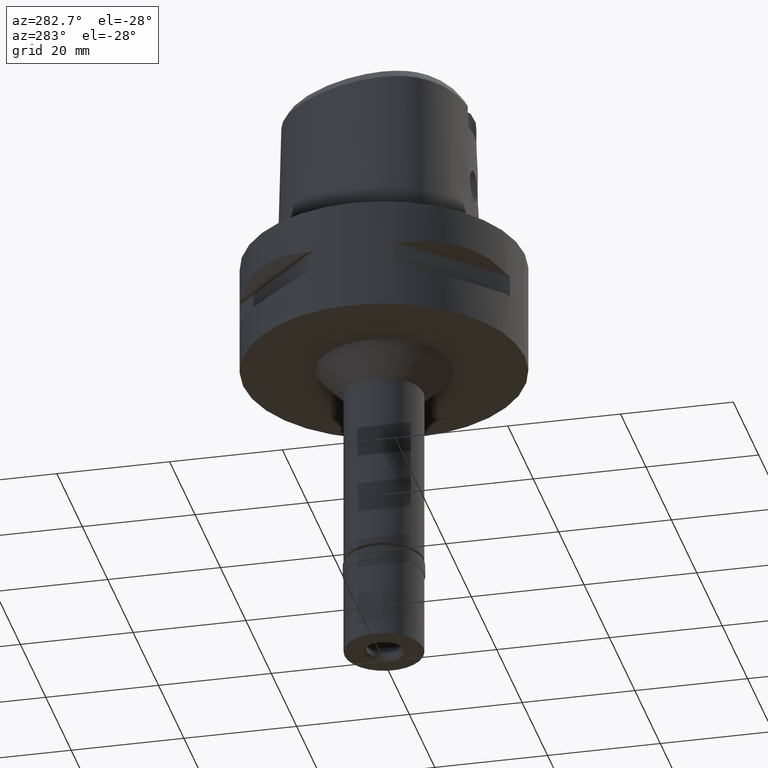
[diagram: clean part render]
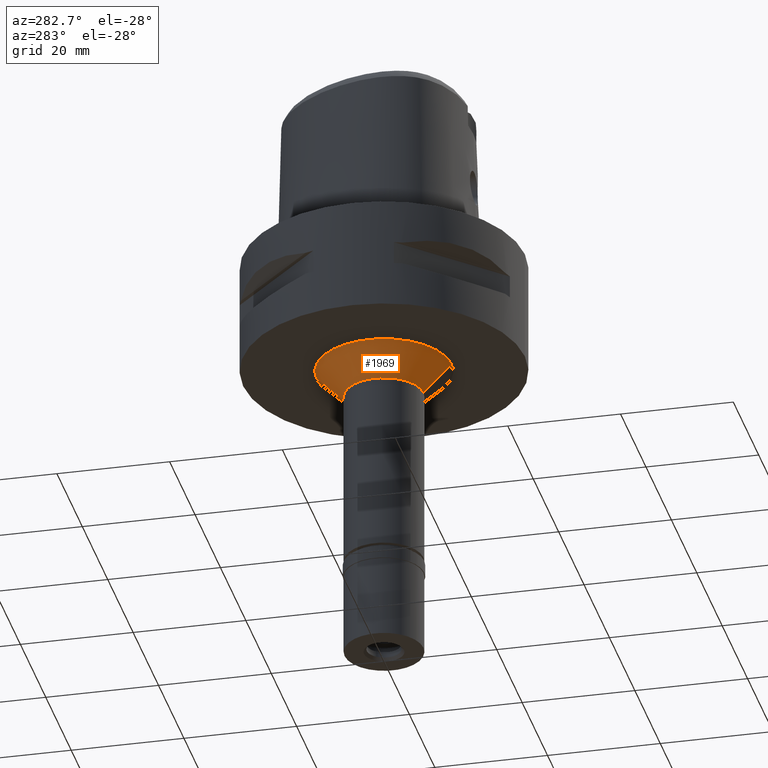
[diagram: same view with one face highlighted and labeled with its STEP entity id]
A machine part, auxiliary view. The second image highlights one B-rep face of the part: STEP entity #1969.
In plain terms, the highlighted conical surface has half-angle 45 deg.
Its self-contained STEP definition (entity closure, byte-faithful):
#12 = EDGE_LOOP ( 'NONE', ( #2915, #2122, #1757, #3560 ) ) ;
#149 = DIRECTION ( 'NONE',  ( 0.0000000000000000000, -1.000000000000000000, 0.0000000000000000000 ) ) ;
#209 = DIRECTION ( 'NONE',  ( 0.0000000000000000000, 0.0000000000000000000, -1.000000000000000000 ) ) ;
#215 = AXIS2_PLACEMENT_3D ( 'NONE', #2750, #1698, #149 ) ;
#393 = VERTEX_POINT ( 'NONE', #4642 ) ;
#539 = CARTESIAN_POINT ( 'NONE',  ( 0.0000000000000000000, -12.00000000000000000, -20.00000000000000000 ) ) ;
#901 = VECTOR ( 'NONE', #3902, 1000.000000000000114 ) ;
#1278 = EDGE_CURVE ( 'NONE', #1549, #393, #4348, .T. ) ;
#1478 = DIRECTION ( 'NONE',  ( 0.0000000000000000000, 1.000000000000000000, 0.0000000000000000000 ) ) ;
#1549 = VERTEX_POINT ( 'NONE', #3981 ) ;
#1698 = DIRECTION ( 'NONE',  ( 0.0000000000000000000, 0.0000000000000000000, -1.000000000000000000 ) ) ;
#1757 = ORIENTED_EDGE ( 'NONE', *, *, #4581, .T. ) ;
#1865 = EDGE_CURVE ( 'NONE', #4478, #1549, #2983, .T. ) ;
#1938 = CARTESIAN_POINT ( 'NONE',  ( 0.0000000000000000000, -12.00000000000000000, -20.00000000000000000 ) ) ;
#1969 = ADVANCED_FACE ( 'NONE', ( #2314 ), #4591, .T. ) ;
#2122 = ORIENTED_EDGE ( 'NONE', *, *, #1865, .F. ) ;
#2231 = EDGE_CURVE ( 'NONE', #3167, #393, #4238, .T. ) ;
#2314 = FACE_OUTER_BOUND ( 'NONE', #12, .T. ) ;
#2362 = CARTESIAN_POINT ( 'NONE',  ( 0.0000000000000000000, 12.00000000000000000, -20.00000000000000000 ) ) ;
#2605 = DIRECTION ( 'NONE',  ( 0.0000000000000000000, 0.7071067811865474617, -0.7071067811865474617 ) ) ;
#2750 = CARTESIAN_POINT ( 'NONE',  ( 0.0000000000000000000, 0.0000000000000000000, -20.00000000000000000 ) ) ;
#2823 = CARTESIAN_POINT ( 'NONE',  ( 0.0000000000000000000, 0.0000000000000000000, -25.00000000000000000 ) ) ;
#2915 = ORIENTED_EDGE ( 'NONE', *, *, #1278, .F. ) ;
#2983 = LINE ( 'NONE', #1938, #4428 ) ;
#3088 = AXIS2_PLACEMENT_3D ( 'NONE', #2823, #209, #3240 ) ;
#3167 = VERTEX_POINT ( 'NONE', #3509 ) ;
#3240 = DIRECTION ( 'NONE',  ( 0.0000000000000000000, -1.000000000000000000, 0.0000000000000000000 ) ) ;
#3429 = CARTESIAN_POINT ( 'NONE',  ( 0.0000000000000000000, 0.0000000000000000000, -22.50000000000000000 ) ) ;
#3509 = CARTESIAN_POINT ( 'NONE',  ( 0.0000000000000000000, 12.00000000000000000, -20.00000000000000000 ) ) ;
#3560 = ORIENTED_EDGE ( 'NONE', *, *, #2231, .T. ) ;
#3814 = CIRCLE ( 'NONE', #215, 12.00000000000000000 ) ;
#3902 = DIRECTION ( 'NONE',  ( 0.0000000000000000000, -0.7071067811865474617, -0.7071067811865474617 ) ) ;
#3981 = CARTESIAN_POINT ( 'NONE',  ( 0.0000000000000000000, -7.000000000000000000, -25.00000000000000000 ) ) ;
#4044 = AXIS2_PLACEMENT_3D ( 'NONE', #3429, #4828, #1478 ) ;
#4238 = LINE ( 'NONE', #2362, #901 ) ;
#4348 = CIRCLE ( 'NONE', #3088, 7.000000000000000000 ) ;
#4428 = VECTOR ( 'NONE', #2605, 1000.000000000000114 ) ;
#4478 = VERTEX_POINT ( 'NONE', #539 ) ;
#4581 = EDGE_CURVE ( 'NONE', #4478, #3167, #3814, .T. ) ;
#4591 = CONICAL_SURFACE ( 'NONE', #4044, 9.500000000000000000, 0.7853981633972997312 ) ;
#4642 = CARTESIAN_POINT ( 'NONE',  ( 0.0000000000000000000, 7.000000000000000000, -25.00000000000000000 ) ) ;
#4828 = DIRECTION ( 'NONE',  ( 0.0000000000000000000, 0.0000000000000000000, 1.000000000000000000 ) ) ;